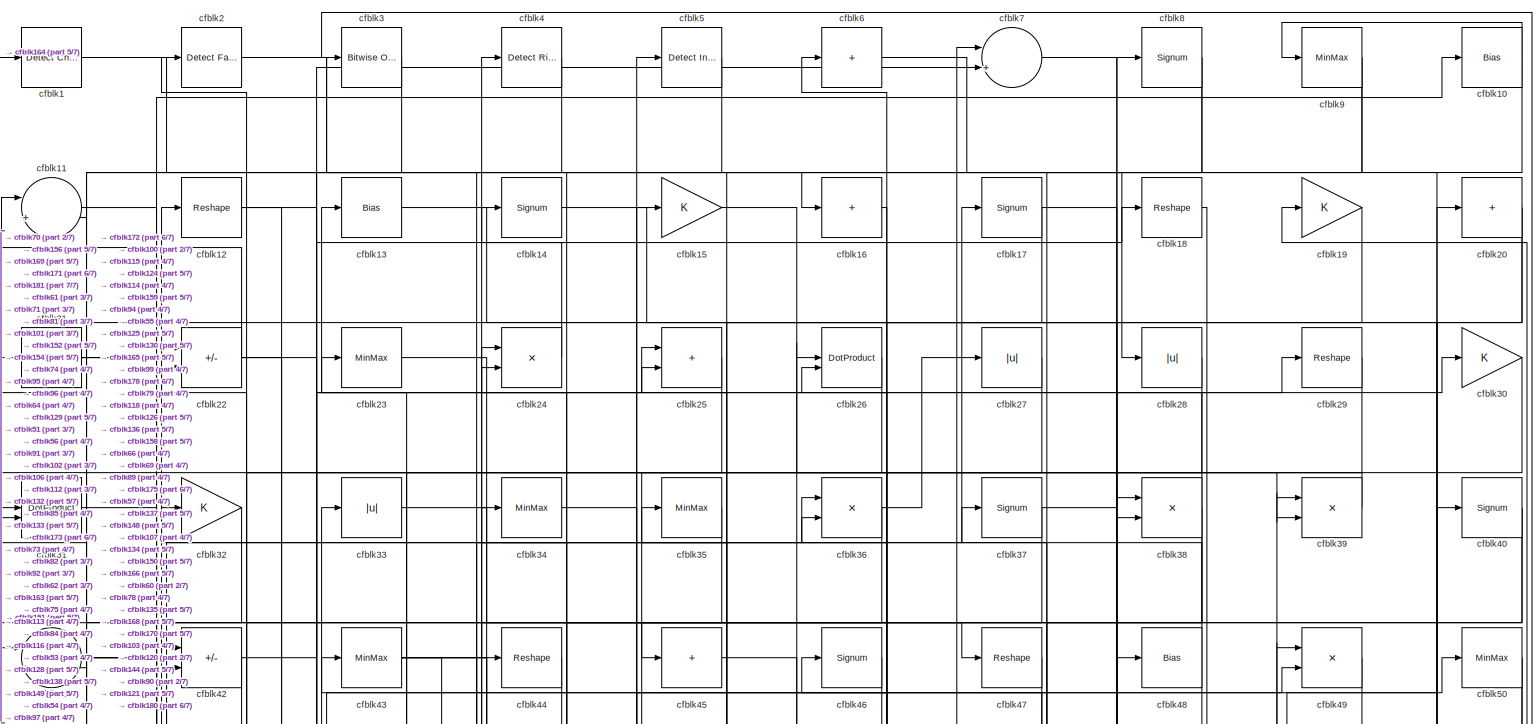
[diagram: root canvas - part 1/7, full width, top band]
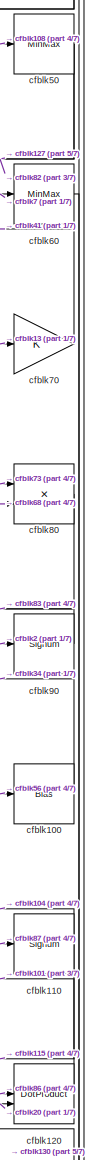
[diagram: root canvas - part 2/7, middle right region]
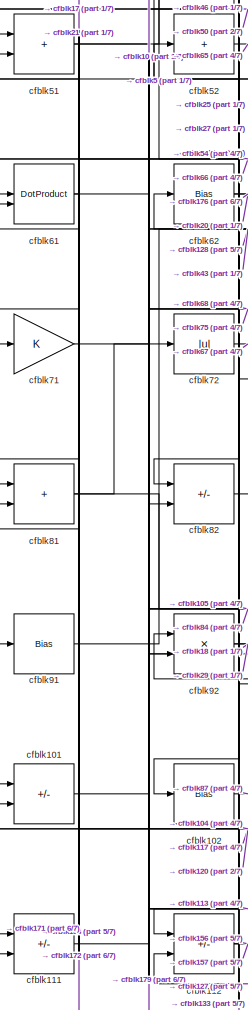
[diagram: root canvas - part 3/7, middle left region]
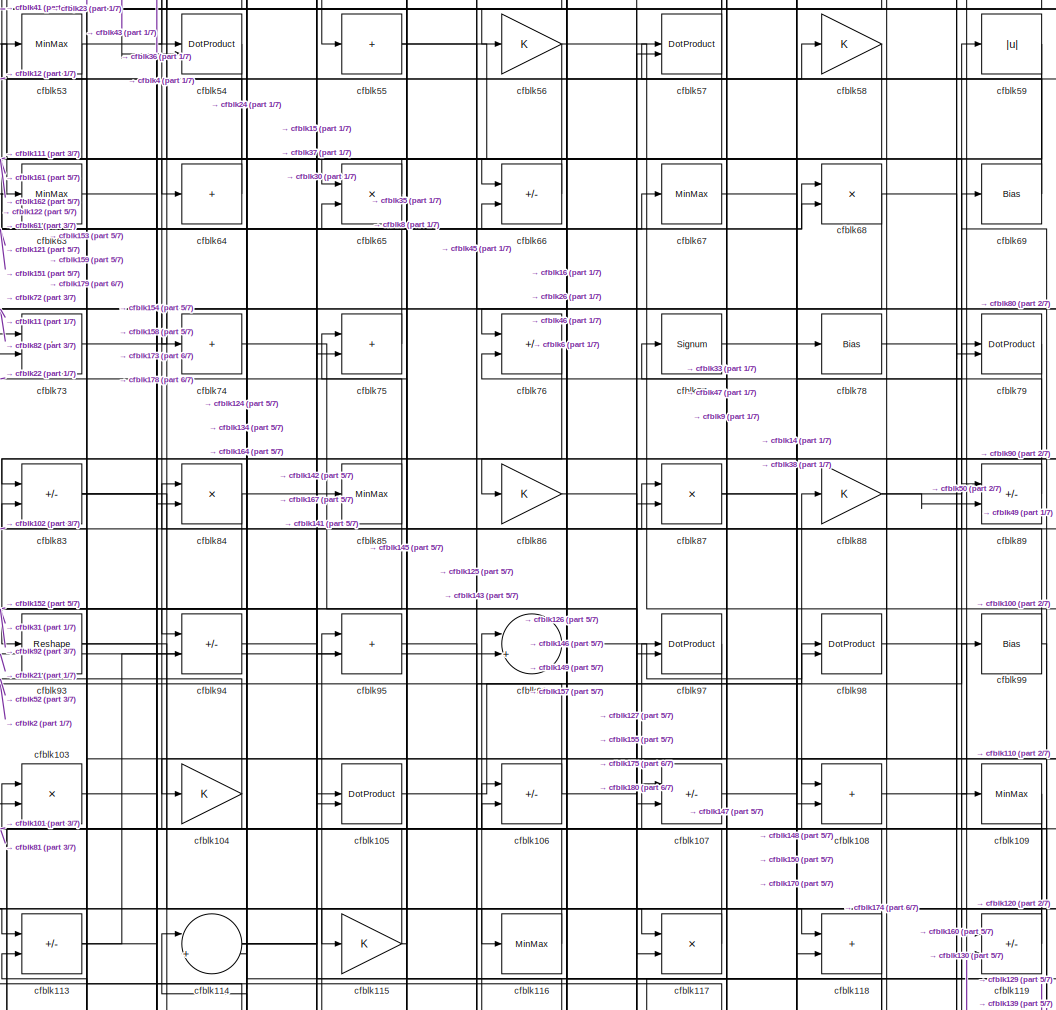
[diagram: root canvas - part 4/7, central region]
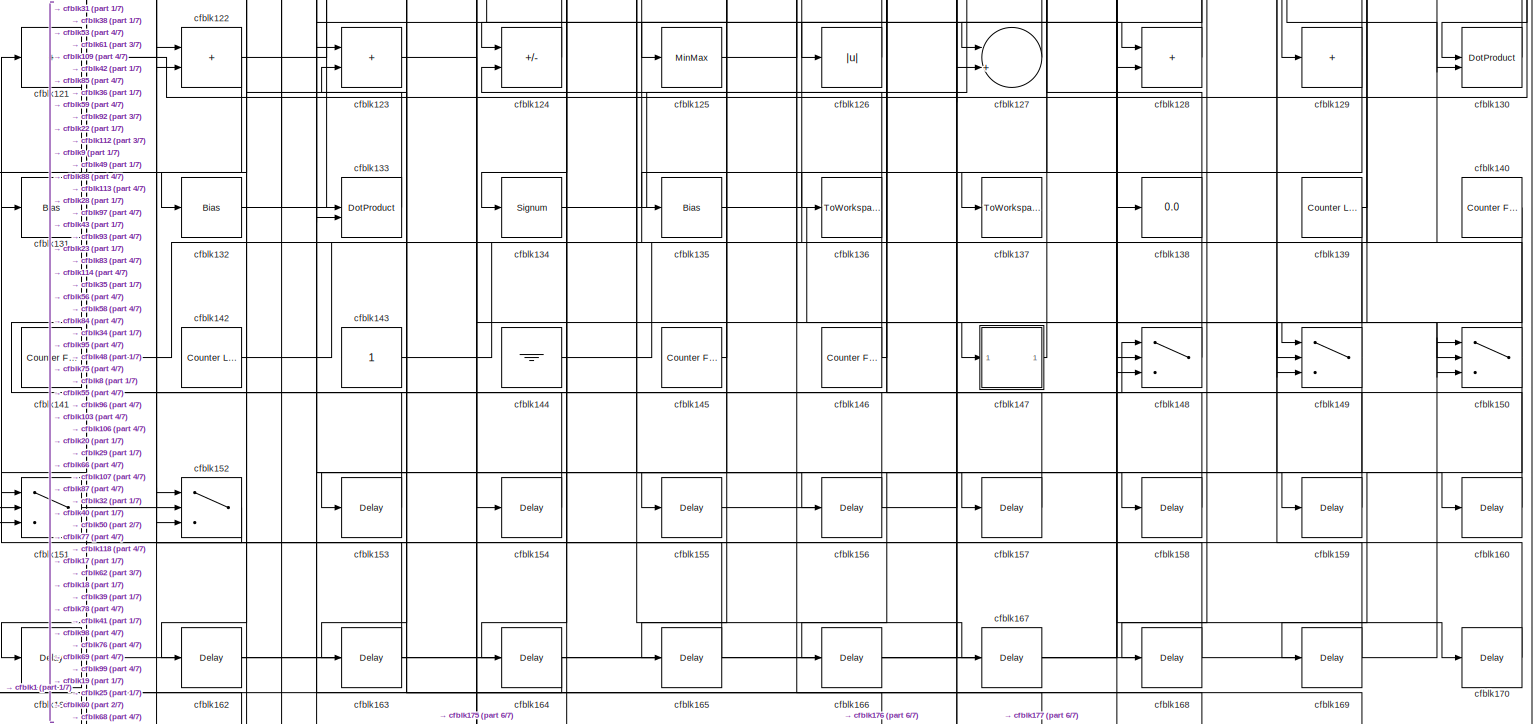
[diagram: root canvas - part 5/7, full width, bottom band]
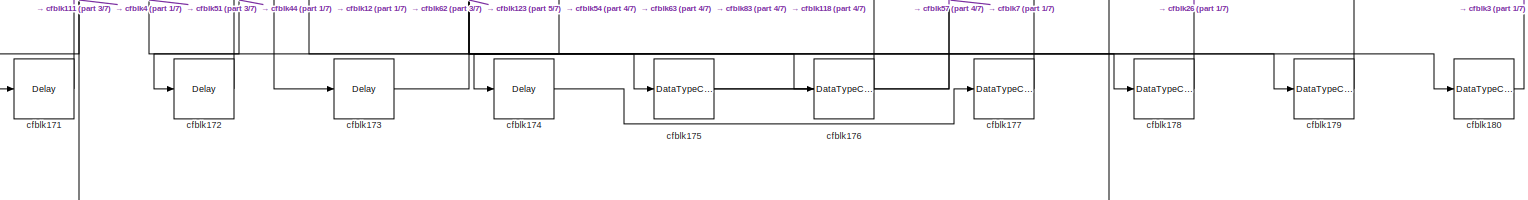
[diagram: root canvas - part 6/7, full width, bottom band]
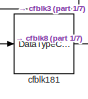
[diagram: root canvas - part 7/7, bottom left region]
MODEL slx_4bbfee2bd74c
KIND model
CONFIG AbsTol = auto
CONFIG EnableMultiTasking = off
CONFIG FixedStep = auto
CONFIG MaxStep = auto
CONFIG MinStep = auto
CONFIG RelTol = 1e-3
CONFIG SampleTimeConstraint = Unconstrained
CONFIG SolverName = VariableStepAuto
CONFIG StartTime = 0.0
CONFIG StopTime = 10.0
BLOCK [Reference] cfblk1  REF=simulink/Logic and Bit
Operations/Detect
Change
  LibrarySourceBlock = hdlsllib/Logic and Bit\nOperations/Detect\nChange
  SourceBlock = simulink/Logic and Bit\nOperations/Detect\nChange
  SourceType = Detect Change
BLOCK [Bias] cfblk10
  Bias = 0.0
  SaturateOnIntegerOverflow = off
BLOCK [Bias] cfblk100
  Bias = 0.0
  SaturateOnIntegerOverflow = off
BLOCK [Sum] cfblk101
  IconShape = rectangular
  Inputs = +-
BLOCK [Bias] cfblk102
  Bias = 0.0
  SaturateOnIntegerOverflow = off
BLOCK [Product] cfblk103
  Inputs = */
  RndMeth = Zero
  SaturateOnIntegerOverflow = on
BLOCK [Gain] cfblk104
BLOCK [DotProduct] cfblk105
  OutDataTypeStr = Inherit: Inherit via internal rule
BLOCK [Sum] cfblk106
  IconShape = rectangular
  Inputs = +-
BLOCK [Sum] cfblk107
  IconShape = rectangular
  Inputs = +-
BLOCK [Sum] cfblk108
  IconShape = rectangular
BLOCK [MinMax] cfblk109
BLOCK [Sum] cfblk11
  Inputs = |++
BLOCK [Signum] cfblk110
BLOCK [Sum] cfblk111
  IconShape = rectangular
  Inputs = +-
BLOCK [Sum] cfblk112
  IconShape = rectangular
  Inputs = +-
BLOCK [Sum] cfblk113
  IconShape = rectangular
  Inputs = +-
BLOCK [Sum] cfblk114
  Inputs = |++
BLOCK [Gain] cfblk115
BLOCK [MinMax] cfblk116
BLOCK [Product] cfblk117
  Inputs = */
  RndMeth = Zero
  SaturateOnIntegerOverflow = on
BLOCK [Sum] cfblk118
  IconShape = rectangular
BLOCK [Sum] cfblk119
  IconShape = rectangular
  Inputs = +-
BLOCK [Reshape] cfblk12
BLOCK [DotProduct] cfblk120
  OutDataTypeStr = Inherit: Inherit via internal rule
BLOCK [Sum] cfblk121
  IconShape = rectangular
  Inputs = +
BLOCK [Sum] cfblk122
  IconShape = rectangular
BLOCK [Sum] cfblk123
  IconShape = rectangular
BLOCK [Sum] cfblk124
  IconShape = rectangular
  Inputs = +-
BLOCK [MinMax] cfblk125
BLOCK [Abs] cfblk126
  SaturateOnIntegerOverflow = off
BLOCK [Sum] cfblk127
  Inputs = |++
BLOCK [Sum] cfblk128
  IconShape = rectangular
BLOCK [Sum] cfblk129
  IconShape = rectangular
  Inputs = +
BLOCK [Bias] cfblk13
  Bias = 0.0
  SaturateOnIntegerOverflow = off
BLOCK [DotProduct] cfblk130
  OutDataTypeStr = Inherit: Inherit via internal rule
BLOCK [Bias] cfblk131
  Bias = 0.0
  SaturateOnIntegerOverflow = off
BLOCK [Bias] cfblk132
  Bias = 0.0
  SaturateOnIntegerOverflow = off
BLOCK [DotProduct] cfblk133
  OutDataTypeStr = Inherit: Inherit via internal rule
BLOCK [Signum] cfblk134
BLOCK [Bias] cfblk135
  Bias = 0.0
  SaturateOnIntegerOverflow = off
BLOCK [ToWorkspace] cfblk136
  MaxDataPoints = inf
  SampleTime = -1
  SaveFormat = Timeseries
  VariableName = simout
BLOCK [ToWorkspace] cfblk137
  MaxDataPoints = inf
  SampleTime = -1
  SaveFormat = Timeseries
  VariableName = simout
BLOCK [Display] cfblk138
  Decimation = 1
BLOCK [Reference] cfblk139  REF=hdlsllib/Sources/Counter
Limited
  SourceBlock = hdlsllib/Sources/Counter\nLimited
  SourceType = Counter Limited
BLOCK [Signum] cfblk14
BLOCK [Reference] cfblk140  REF=hdlsllib/Sources/Counter
Free-Running
  SourceBlock = hdlsllib/Sources/Counter\nFree-Running
  SourceType = Counter Free-Running
BLOCK [Reference] cfblk141  REF=hdlsllib/Sources/Counter
Free-Running
  SourceBlock = hdlsllib/Sources/Counter\nFree-Running
  SourceType = Counter Free-Running
BLOCK [Reference] cfblk142  REF=hdlsllib/Sources/Counter
Limited
  SourceBlock = hdlsllib/Sources/Counter\nLimited
  SourceType = Counter Limited
BLOCK [Constant] cfblk143
  SampleTime = -1
BLOCK [Ground] cfblk144
BLOCK [Reference] cfblk145  REF=hdlsllib/Sources/Counter
Free-Running
  SourceBlock = hdlsllib/Sources/Counter\nFree-Running
  SourceType = Counter Free-Running
BLOCK [Reference] cfblk146  REF=hdlsllib/Sources/Counter
Free-Running
  SourceBlock = hdlsllib/Sources/Counter\nFree-Running
  SourceType = Counter Free-Running
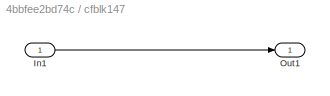
BLOCK [SubSystem] cfblk147
  LibrarySourceBlock = hdlsllib/Ports &\nSubsystems/Subsystem
BLOCK [Inport] cfblk147/In1
BLOCK [Outport] cfblk147/Out1
BLOCK [Switch] cfblk148
  InputSameDT = off
  SaturateOnIntegerOverflow = off
BLOCK [Switch] cfblk149
  InputSameDT = off
  SaturateOnIntegerOverflow = off
BLOCK [Gain] cfblk15
BLOCK [Switch] cfblk150
  InputSameDT = off
  SaturateOnIntegerOverflow = off
BLOCK [Switch] cfblk151
  InputSameDT = off
  SaturateOnIntegerOverflow = off
BLOCK [Switch] cfblk152
  InputSameDT = off
  SaturateOnIntegerOverflow = off
BLOCK [Delay] cfblk153
  InputPortMap = u0
  SampleTime = 1
BLOCK [Delay] cfblk154
  InputPortMap = u0
  SampleTime = 1
BLOCK [Delay] cfblk155
  InputPortMap = u0
  SampleTime = 1
BLOCK [Delay] cfblk156
  InputPortMap = u0
  SampleTime = 1
BLOCK [Delay] cfblk157
  InputPortMap = u0
  SampleTime = 1
BLOCK [Delay] cfblk158
  InputPortMap = u0
  SampleTime = 1
BLOCK [Delay] cfblk159
  InputPortMap = u0
  SampleTime = 1
BLOCK [Sum] cfblk16
  IconShape = rectangular
  Inputs = +
BLOCK [Delay] cfblk160
  InputPortMap = u0
  SampleTime = 1
BLOCK [Delay] cfblk161
  InputPortMap = u0
  SampleTime = 1
BLOCK [Delay] cfblk162
  InputPortMap = u0
  SampleTime = 1
BLOCK [Delay] cfblk163
  InputPortMap = u0
  SampleTime = 1
BLOCK [Delay] cfblk164
  InputPortMap = u0
  SampleTime = 1
BLOCK [Delay] cfblk165
  InputPortMap = u0
  SampleTime = 1
BLOCK [Delay] cfblk166
  InputPortMap = u0
  SampleTime = 1
BLOCK [Delay] cfblk167
  InputPortMap = u0
  SampleTime = 1
BLOCK [Delay] cfblk168
  InputPortMap = u0
  SampleTime = 1
BLOCK [Delay] cfblk169
  InputPortMap = u0
  SampleTime = 1
BLOCK [Signum] cfblk17
BLOCK [Delay] cfblk170
  InputPortMap = u0
  SampleTime = 1
BLOCK [Delay] cfblk171
  InputPortMap = u0
  SampleTime = 1
BLOCK [Delay] cfblk172
  InputPortMap = u0
  SampleTime = 1
BLOCK [Delay] cfblk173
  InputPortMap = u0
  SampleTime = 1
BLOCK [Delay] cfblk174
  InputPortMap = u0
  SampleTime = 1
BLOCK [DataTypeConversion] cfblk175
  RndMeth = Floor
  SaturateOnIntegerOverflow = off
BLOCK [DataTypeConversion] cfblk176
  OutDataTypeStr = uint8
  RndMeth = Floor
  SaturateOnIntegerOverflow = off
BLOCK [DataTypeConversion] cfblk177
  OutDataTypeStr = uint8
  RndMeth = Floor
  SaturateOnIntegerOverflow = off
BLOCK [DataTypeConversion] cfblk178
  OutDataTypeStr = uint8
  RndMeth = Floor
  SaturateOnIntegerOverflow = off
BLOCK [DataTypeConversion] cfblk179
  OutDataTypeStr = uint8
  RndMeth = Floor
  SaturateOnIntegerOverflow = off
BLOCK [Reshape] cfblk18
BLOCK [DataTypeConversion] cfblk180
  OutDataTypeStr = boolean
  RndMeth = Floor
  SaturateOnIntegerOverflow = off
BLOCK [DataTypeConversion] cfblk181
  OutDataTypeStr = uint8
  RndMeth = Floor
  SaturateOnIntegerOverflow = off
BLOCK [Gain] cfblk19
BLOCK [Reference] cfblk2  REF=hdlsllib/Logic and Bit
Operations/Detect Fall
Negative
  SourceBlock = hdlsllib/Logic and Bit\nOperations/Detect Fall\nNegative
  SourceType = Detect Fall Negative
BLOCK [Sum] cfblk20
  IconShape = rectangular
  Inputs = +
BLOCK [Bias] cfblk21
  Bias = 0.0
  SaturateOnIntegerOverflow = off
BLOCK [Sum] cfblk22
  IconShape = rectangular
  Inputs = +-
BLOCK [MinMax] cfblk23
BLOCK [Product] cfblk24
  Inputs = */
  RndMeth = Zero
  SaturateOnIntegerOverflow = on
BLOCK [Sum] cfblk25
  IconShape = rectangular
BLOCK [DotProduct] cfblk26
  OutDataTypeStr = Inherit: Inherit via internal rule
BLOCK [Abs] cfblk27
  SaturateOnIntegerOverflow = off
BLOCK [Abs] cfblk28
  SaturateOnIntegerOverflow = off
BLOCK [Reshape] cfblk29
BLOCK [Reference] cfblk3  REF=simulink/Logic and Bit
Operations/Bitwise
Operator
  LibrarySourceBlock = hdlsllib/Logic and Bit\nOperations/Bitwise\nOperator
  SourceBlock = simulink/Logic and Bit\nOperations/Bitwise\nOperator
  SourceType = Bitwise Operator
BLOCK [Gain] cfblk30
BLOCK [DotProduct] cfblk31
  OutDataTypeStr = Inherit: Inherit via internal rule
BLOCK [Gain] cfblk32
BLOCK [Abs] cfblk33
  SaturateOnIntegerOverflow = off
BLOCK [MinMax] cfblk34
BLOCK [MinMax] cfblk35
BLOCK [Product] cfblk36
  Inputs = */
  RndMeth = Zero
  SaturateOnIntegerOverflow = on
BLOCK [Signum] cfblk37
BLOCK [Product] cfblk38
  Inputs = */
  RndMeth = Zero
  SaturateOnIntegerOverflow = on
BLOCK [Product] cfblk39
  Inputs = */
  RndMeth = Zero
  SaturateOnIntegerOverflow = on
BLOCK [Reference] cfblk4  REF=hdlsllib/Logic and Bit
Operations/Detect Rise
Nonnegative
  SourceBlock = hdlsllib/Logic and Bit\nOperations/Detect Rise\nNonnegative
  SourceType = Detect Rise Nonnegative
BLOCK [Signum] cfblk40
BLOCK [Sum] cfblk41
  Inputs = |++
BLOCK [Sum] cfblk42
  IconShape = rectangular
  Inputs = +-
BLOCK [MinMax] cfblk43
BLOCK [Reshape] cfblk44
BLOCK [Sum] cfblk45
  IconShape = rectangular
  Inputs = +
BLOCK [Signum] cfblk46
BLOCK [Reshape] cfblk47
BLOCK [Bias] cfblk48
  Bias = 0.0
  SaturateOnIntegerOverflow = off
BLOCK [Product] cfblk49
  Inputs = */
  RndMeth = Zero
  SaturateOnIntegerOverflow = on
BLOCK [Reference] cfblk5  REF=simulink/Logic and Bit
Operations/Detect
Increase
  LibrarySourceBlock = hdlsllib/Logic and Bit\nOperations/Detect\nIncrease
  SourceBlock = simulink/Logic and Bit\nOperations/Detect\nIncrease
  SourceType = Detect Increase
BLOCK [MinMax] cfblk50
BLOCK [Sum] cfblk51
  IconShape = rectangular
BLOCK [Sum] cfblk52
  IconShape = rectangular
  Inputs = +
BLOCK [MinMax] cfblk53
BLOCK [DotProduct] cfblk54
  OutDataTypeStr = Inherit: Inherit via internal rule
BLOCK [Sum] cfblk55
  IconShape = rectangular
  Inputs = +
BLOCK [Gain] cfblk56
BLOCK [DotProduct] cfblk57
  OutDataTypeStr = Inherit: Inherit via internal rule
BLOCK [Gain] cfblk58
BLOCK [Abs] cfblk59
  SaturateOnIntegerOverflow = off
BLOCK [Sum] cfblk6
  IconShape = rectangular
  Inputs = +
BLOCK [MinMax] cfblk60
BLOCK [DotProduct] cfblk61
  OutDataTypeStr = Inherit: Inherit via internal rule
BLOCK [Bias] cfblk62
  Bias = 0.0
  SaturateOnIntegerOverflow = off
BLOCK [MinMax] cfblk63
BLOCK [Sum] cfblk64
  IconShape = rectangular
  Inputs = +
BLOCK [Product] cfblk65
  Inputs = */
  RndMeth = Zero
  SaturateOnIntegerOverflow = on
BLOCK [Sum] cfblk66
  IconShape = rectangular
  Inputs = +-
BLOCK [MinMax] cfblk67
BLOCK [Product] cfblk68
  Inputs = */
  RndMeth = Zero
  SaturateOnIntegerOverflow = on
BLOCK [Bias] cfblk69
  Bias = 0.0
  SaturateOnIntegerOverflow = off
BLOCK [Sum] cfblk7
  Inputs = |++
BLOCK [Gain] cfblk70
BLOCK [Gain] cfblk71
BLOCK [Abs] cfblk72
  SaturateOnIntegerOverflow = off
BLOCK [Sum] cfblk73
  IconShape = rectangular
BLOCK [Sum] cfblk74
  IconShape = rectangular
  Inputs = +
BLOCK [Sum] cfblk75
  IconShape = rectangular
BLOCK [Sum] cfblk76
  IconShape = rectangular
  Inputs = +-
BLOCK [Signum] cfblk77
BLOCK [Bias] cfblk78
  Bias = 0.0
  SaturateOnIntegerOverflow = off
BLOCK [DotProduct] cfblk79
  OutDataTypeStr = Inherit: Inherit via internal rule
BLOCK [Signum] cfblk8
BLOCK [Product] cfblk80
  Inputs = */
  RndMeth = Zero
  SaturateOnIntegerOverflow = on
BLOCK [Sum] cfblk81
  IconShape = rectangular
BLOCK [Sum] cfblk82
  IconShape = rectangular
  Inputs = +-
BLOCK [Sum] cfblk83
  IconShape = rectangular
  Inputs = +-
BLOCK [Product] cfblk84
  Inputs = */
  RndMeth = Zero
  SaturateOnIntegerOverflow = on
BLOCK [MinMax] cfblk85
BLOCK [Gain] cfblk86
BLOCK [Product] cfblk87
  Inputs = */
  RndMeth = Zero
  SaturateOnIntegerOverflow = on
BLOCK [Gain] cfblk88
BLOCK [Sum] cfblk89
  IconShape = rectangular
  Inputs = +-
BLOCK [MinMax] cfblk9
BLOCK [Signum] cfblk90
BLOCK [Bias] cfblk91
  Bias = 0.0
  SaturateOnIntegerOverflow = off
BLOCK [Product] cfblk92
  Inputs = */
  RndMeth = Zero
  SaturateOnIntegerOverflow = on
BLOCK [Reshape] cfblk93
BLOCK [Sum] cfblk94
  IconShape = rectangular
  Inputs = +-
BLOCK [Sum] cfblk95
  IconShape = rectangular
BLOCK [Sum] cfblk96
  Inputs = |++
BLOCK [DotProduct] cfblk97
  OutDataTypeStr = Inherit: Inherit via internal rule
BLOCK [DotProduct] cfblk98
  OutDataTypeStr = Inherit: Inherit via internal rule
BLOCK [Bias] cfblk99
  Bias = 0.0
  SaturateOnIntegerOverflow = off
LINE cfblk100:1 -> cfblk34:1
LINE cfblk101:1 -> cfblk10:1
LINE cfblk102:1 -> cfblk87:1
LINE cfblk103:1 -> cfblk154:1
NET cfblk104:1 -> cfblk101:2, cfblk52:1
LINE cfblk105:1 -> cfblk98:1
NET cfblk106:1 -> cfblk2:1, cfblk89:1
LINE cfblk107:1 -> cfblk38:2
LINE cfblk108:1 -> cfblk50:1
NET cfblk109:1 -> cfblk119:1, cfblk122:2
NET cfblk10:1 -> cfblk11:2, cfblk9:1
NET cfblk110:1 -> cfblk104:1, cfblk115:1
LINE cfblk111:1 -> cfblk113:1
NET cfblk112:1 -> cfblk156:1, cfblk157:1
NET cfblk113:1 -> cfblk36:1, cfblk94:2
NET cfblk114:1 -> cfblk119:2, cfblk15:1, cfblk37:1
NET cfblk115:1 -> cfblk24:1, cfblk65:2
LINE cfblk116:1 -> cfblk4:1
LINE cfblk117:1 -> cfblk81:2
NET cfblk118:1 -> cfblk174:1, cfblk46:1
NET cfblk119:1 -> cfblk53:1, cfblk97:1
LINE cfblk11:1 -> cfblk74:1
LINE cfblk120:1 -> cfblk101:1
NET cfblk121:1 -> cfblk151:2, cfblk19:1, cfblk68:2
NET cfblk122:1 -> cfblk131:1, cfblk88:1
LINE cfblk123:1 -> cfblk175:1
LINE cfblk124:1 -> cfblk83:2
LINE cfblk125:1 -> cfblk99:1
LINE cfblk126:1 -> cfblk103:1
LINE cfblk127:1 -> cfblk112:2
LINE cfblk128:1 -> cfblk62:1
NET cfblk129:1 -> cfblk155:1, cfblk76:2
NET cfblk12:1 -> cfblk173:1, cfblk73:1
LINE cfblk130:1 -> cfblk25:1
LINE cfblk131:1 -> cfblk148:1
LINE cfblk132:1 -> cfblk49:1
LINE cfblk133:1 -> cfblk92:1
LINE cfblk134:1 -> cfblk48:1
LINE cfblk135:1 -> cfblk147:1
NET cfblk139:1 -> cfblk149:2, cfblk69:1
LINE cfblk13:1 -> cfblk70:1
LINE cfblk140:1 -> cfblk148:3
LINE cfblk141:1 -> cfblk95:1
LINE cfblk142:1 -> cfblk85:1
LINE cfblk143:1 -> cfblk96:1
LINE cfblk144:1 -> cfblk40:1
LINE cfblk145:1 -> cfblk75:1
NET cfblk146:1 -> cfblk106:2, cfblk84:1
LINE cfblk147/In1:1 -> cfblk147/Out1:1
LINE cfblk147:1 -> cfblk77:1
LINE cfblk148:1 -> cfblk32:1
NET cfblk149:1 -> cfblk106:1, cfblk166:1
LINE cfblk14:1 -> cfblk78:1
NET cfblk150:1 -> cfblk109:1, cfblk169:1
LINE cfblk151:1 -> cfblk68:1
LINE cfblk152:1 -> cfblk121:1
LINE cfblk153:1 -> cfblk61:2
LINE cfblk154:1 -> cfblk42:1
LINE cfblk155:1 -> cfblk87:2
LINE cfblk156:1 -> cfblk41:2
LINE cfblk157:1 -> cfblk66:2
LINE cfblk158:1 -> cfblk36:2
LINE cfblk159:1 -> cfblk113:2
LINE cfblk15:1 -> cfblk39:2
LINE cfblk160:1 -> cfblk114:1
LINE cfblk161:1 -> cfblk107:2
LINE cfblk162:1 -> cfblk118:2
LINE cfblk163:1 -> cfblk122:1
LINE cfblk164:1 -> cfblk1:1
LINE cfblk165:1 -> cfblk124:2
LINE cfblk166:1 -> cfblk38:1
LINE cfblk167:1 -> cfblk150:1
LINE cfblk168:1 -> cfblk152:1
LINE cfblk169:1 -> cfblk31:2
LINE cfblk16:1 -> cfblk66:1
LINE cfblk170:1 -> cfblk39:1
LINE cfblk171:1 -> cfblk111:1
LINE cfblk172:1 -> cfblk51:2
LINE cfblk173:1 -> cfblk54:1
LINE cfblk174:1 -> cfblk177:1
NET cfblk175:1 -> cfblk57:2, cfblk7:1
LINE cfblk176:1 -> cfblk123:1
LINE cfblk177:1 -> cfblk123:2
LINE cfblk178:1 -> cfblk26:1
LINE cfblk179:1 -> cfblk63:1
NET cfblk17:1 -> cfblk150:2, cfblk81:1
LINE cfblk180:1 -> cfblk3:1
LINE cfblk181:1 -> cfblk8:1
LINE cfblk18:1 -> cfblk168:1
LINE cfblk19:1 -> cfblk125:1
LINE cfblk1:1 -> cfblk16:1
NET cfblk20:1 -> cfblk120:2, cfblk126:1
NET cfblk21:1 -> cfblk22:1, cfblk96:2
NET cfblk22:1 -> cfblk11:1, cfblk128:2, cfblk133:1
LINE cfblk23:1 -> cfblk128:1
LINE cfblk24:1 -> cfblk14:1
LINE cfblk25:1 -> cfblk112:1
LINE cfblk26:1 -> cfblk73:2
LINE cfblk27:1 -> cfblk102:1
LINE cfblk28:1 -> cfblk163:1
LINE cfblk29:1 -> cfblk136:1
NET cfblk2:1 -> cfblk84:2, cfblk90:1
LINE cfblk30:1 -> cfblk55:1
LINE cfblk31:1 -> cfblk95:2
LINE cfblk32:1 -> cfblk152:2
LINE cfblk33:1 -> cfblk47:1
LINE cfblk34:1 -> cfblk159:1
LINE cfblk35:1 -> cfblk124:1
NET cfblk36:1 -> cfblk132:1, cfblk27:1
NET cfblk37:1 -> cfblk30:1, cfblk45:1
NET cfblk38:1 -> cfblk13:1, cfblk151:1, cfblk44:1
LINE cfblk39:1 -> cfblk31:1
LINE cfblk3:1 -> cfblk181:1
NET cfblk40:1 -> cfblk137:1, cfblk151:3
NET cfblk41:1 -> cfblk116:1, cfblk129:1, cfblk56:1
NET cfblk42:1 -> cfblk7:2, cfblk91:1
NET cfblk43:1 -> cfblk138:1, cfblk149:3, cfblk54:2, cfblk97:2
LINE cfblk44:1 -> cfblk172:1
LINE cfblk45:1 -> cfblk79:2
LINE cfblk46:1 -> cfblk51:1
LINE cfblk47:1 -> cfblk114:2
NET cfblk48:1 -> cfblk135:1, cfblk17:1
LINE cfblk49:1 -> cfblk103:2
LINE cfblk4:1 -> cfblk171:1
NET cfblk50:1 -> cfblk127:1, cfblk82:1
NET cfblk51:1 -> cfblk179:1, cfblk5:1
LINE cfblk52:1 -> cfblk65:1
NET cfblk53:1 -> cfblk161:1, cfblk24:2
LINE cfblk54:1 -> cfblk111:2
NET cfblk55:1 -> cfblk148:2, cfblk150:3
NET cfblk56:1 -> cfblk100:1, cfblk134:1
NET cfblk57:1 -> cfblk33:1, cfblk76:1
LINE cfblk58:1 -> cfblk164:1
NET cfblk59:1 -> cfblk105:2, cfblk162:1
LINE cfblk5:1 -> cfblk71:1
LINE cfblk60:1 -> cfblk130:1
NET cfblk61:1 -> cfblk21:1, cfblk75:2
NET cfblk62:1 -> cfblk176:1, cfblk20:1
LINE cfblk63:1 -> cfblk178:1
LINE cfblk64:1 -> cfblk12:1
LINE cfblk65:1 -> cfblk64:1
LINE cfblk66:1 -> cfblk61:1
LINE cfblk67:1 -> cfblk108:2
NET cfblk68:1 -> cfblk80:2, cfblk82:2
NET cfblk69:1 -> cfblk26:2, cfblk57:1
LINE cfblk6:1 -> cfblk28:1
LINE cfblk70:1 -> cfblk41:1
LINE cfblk71:1 -> cfblk42:2
LINE cfblk72:1 -> cfblk67:1
LINE cfblk73:1 -> cfblk80:1
LINE cfblk74:1 -> cfblk117:2
LINE cfblk75:1 -> cfblk23:1
LINE cfblk76:1 -> cfblk93:1
LINE cfblk77:1 -> cfblk170:1
LINE cfblk78:1 -> cfblk160:1
LINE cfblk79:1 -> cfblk86:1
LINE cfblk7:1 -> cfblk60:1
LINE cfblk80:1 -> cfblk108:1
NET cfblk81:1 -> cfblk105:1, cfblk72:1
LINE cfblk82:1 -> cfblk25:2
NET cfblk83:1 -> cfblk127:2, cfblk180:1, cfblk58:1
NET cfblk84:1 -> cfblk167:1, cfblk92:2
NET cfblk85:1 -> cfblk152:3, cfblk22:2
LINE cfblk86:1 -> cfblk120:1
NET cfblk87:1 -> cfblk110:1, cfblk79:1
NET cfblk88:1 -> cfblk59:1, cfblk89:2
LINE cfblk89:1 -> cfblk6:1
NET cfblk8:1 -> cfblk165:1, cfblk94:1
LINE cfblk90:1 -> cfblk83:1
LINE cfblk91:1 -> cfblk43:1
NET cfblk92:1 -> cfblk18:1, cfblk29:1
NET cfblk93:1 -> cfblk117:1, cfblk158:1
LINE cfblk94:1 -> cfblk49:2
LINE cfblk95:1 -> cfblk118:1
LINE cfblk96:1 -> cfblk98:2
LINE cfblk97:1 -> cfblk153:1
LINE cfblk98:1 -> cfblk130:2
NET cfblk99:1 -> cfblk149:1, cfblk35:1
NET cfblk9:1 -> cfblk107:1, cfblk133:2
note: NET lines group one-source signal fan-out (src -> all destinations, sorted); 1:1 wires keep LINE
